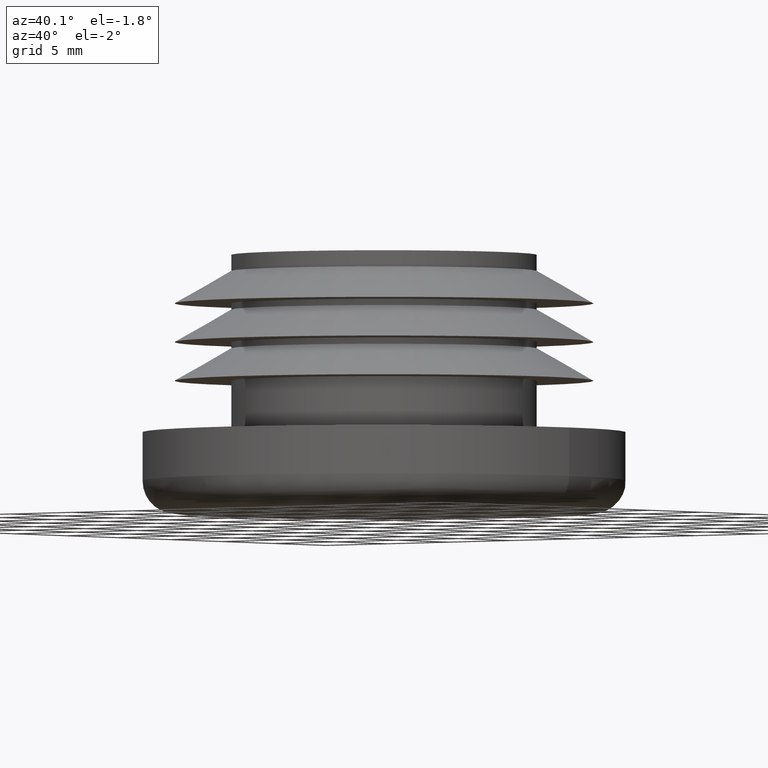
[diagram: clean part render]
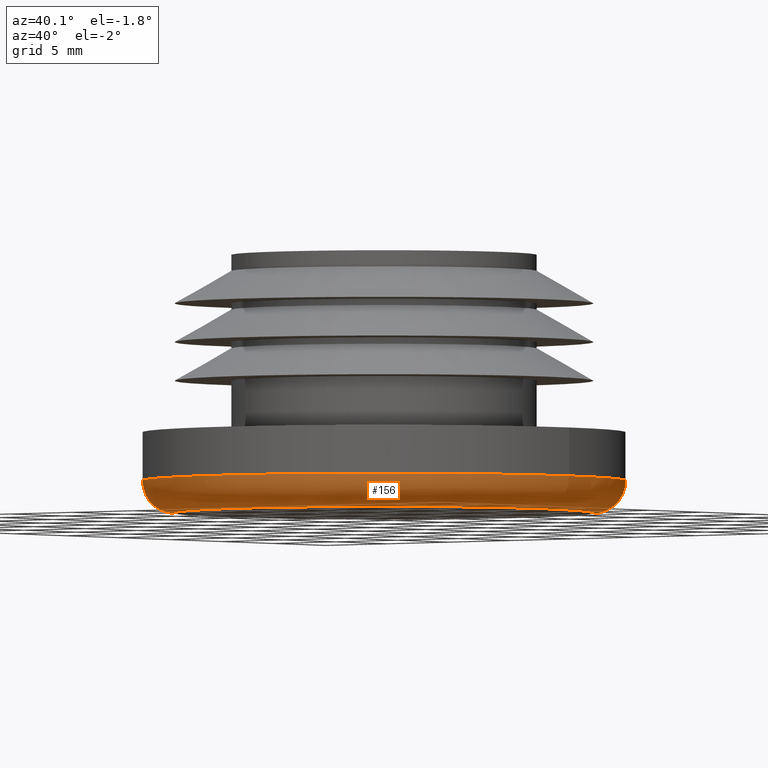
[diagram: same view with one face highlighted and labeled with its STEP entity id]
A machine part, auxiliary view. The second image highlights one B-rep face of the part: STEP entity #156.
In plain terms, the highlighted toroidal blend (fillet) surface has major radius 13 mm and minor (blend) radius 2 mm.
Its self-contained STEP definition (entity closure, byte-faithful):
#29=FACE_BOUND('',#58,.T.);
#42=FACE_OUTER_BOUND('',#57,.T.);
#57=EDGE_LOOP('',(#127));
#58=EDGE_LOOP('',(#128));
#85=CIRCLE('',#174,15.);
#86=CIRCLE('',#175,13.);
#99=VERTEX_POINT('',#264);
#100=VERTEX_POINT('',#266);
#113=EDGE_CURVE('',#99,#99,#85,.T.);
#114=EDGE_CURVE('',#100,#100,#86,.T.);
#127=ORIENTED_EDGE('',*,*,#113,.T.);
#128=ORIENTED_EDGE('',*,*,#114,.T.);
#155=TOROIDAL_SURFACE('',#173,13.,2.);
#156=ADVANCED_FACE('',(#42,#29),#155,.T.);
#173=AXIS2_PLACEMENT_3D('',#263,#204,#205);
#174=AXIS2_PLACEMENT_3D('',#265,#206,#207);
#175=AXIS2_PLACEMENT_3D('',#267,#208,#209);
#204=DIRECTION('center_axis',(0.,0.,-1.));
#205=DIRECTION('ref_axis',(-1.,0.,0.));
#206=DIRECTION('center_axis',(0.,0.,-1.));
#207=DIRECTION('ref_axis',(-1.,0.,0.));
#208=DIRECTION('center_axis',(0.,0.,1.));
#209=DIRECTION('ref_axis',(-1.,0.,0.));
#263=CARTESIAN_POINT('Origin',(0.,0.,-0.5));
#264=CARTESIAN_POINT('',(15.,-1.83697019872103E-15,-0.5));
#265=CARTESIAN_POINT('Origin',(0.,0.,-0.5));
#266=CARTESIAN_POINT('',(13.,1.59204083889156E-15,-2.5));
#267=CARTESIAN_POINT('Origin',(0.,0.,-2.5));